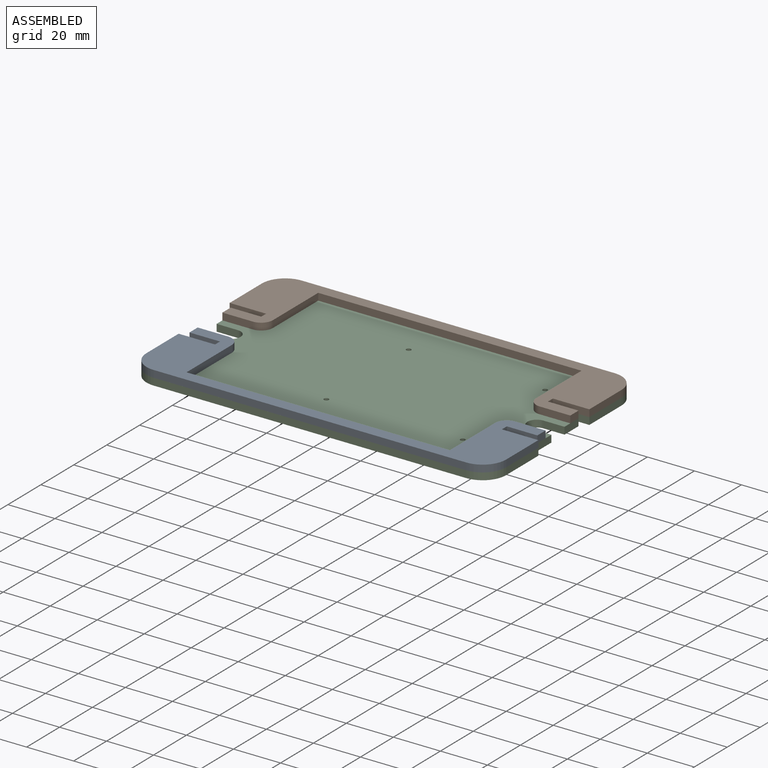
[diagram: assembled view]
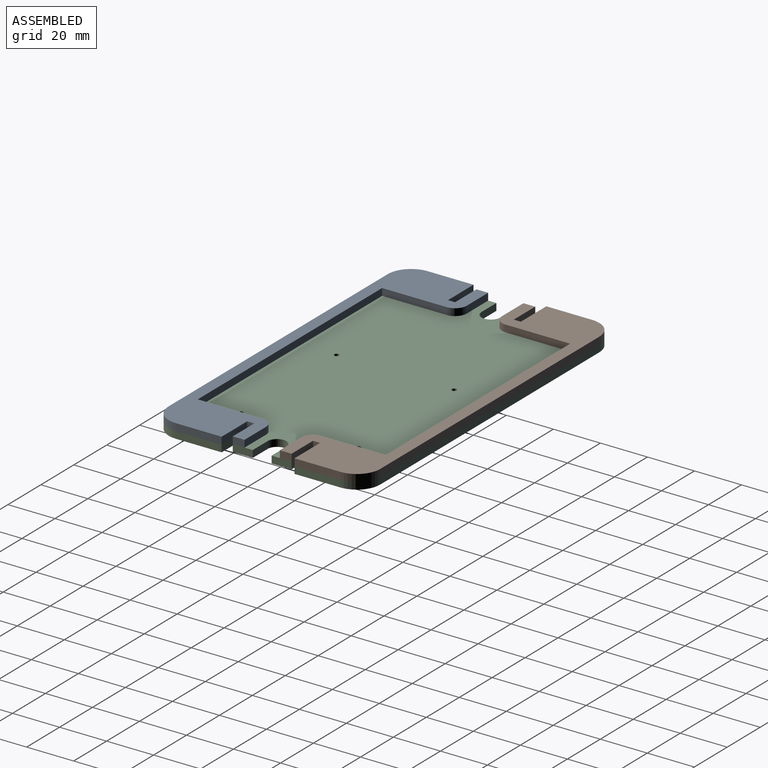
[diagram: assembled view, second angle]
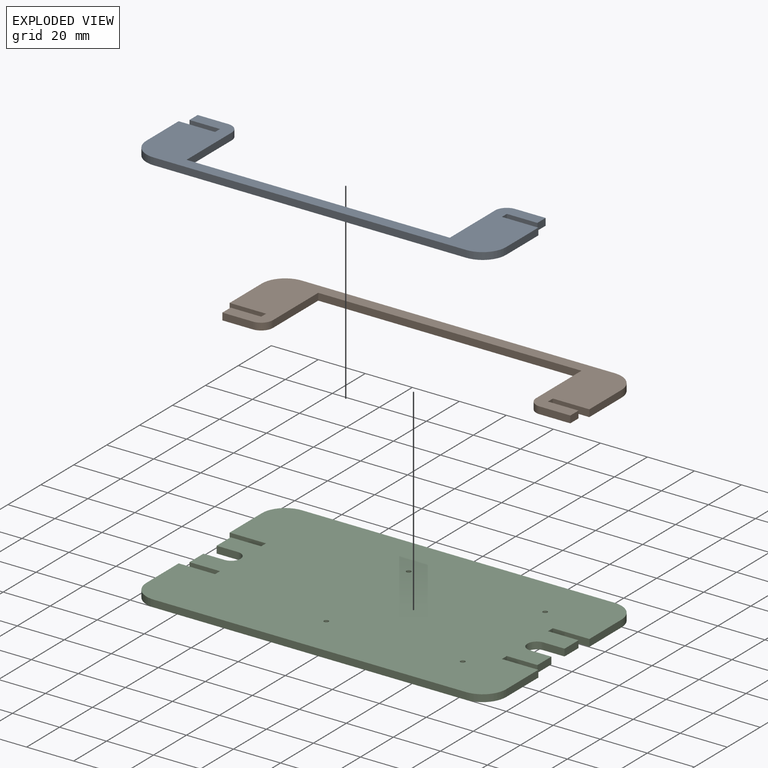
[diagram: exploded view]
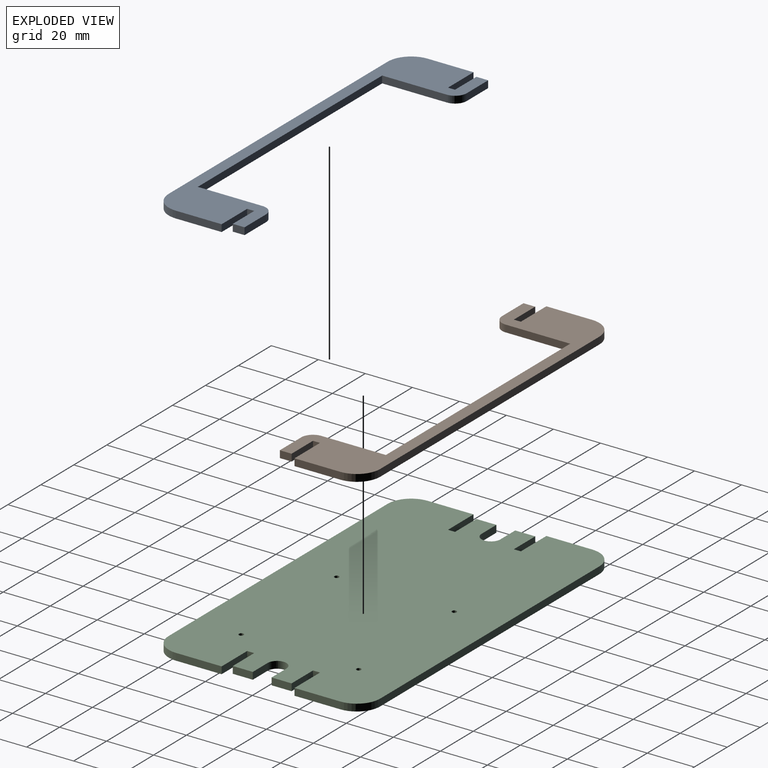
[diagram: exploded view, second angle]
ASSEMBLY  parts=3 mates=2
PART A: 22 faces, bbox 153x37.5x3 mm
  f0: plane 27.5x3mm, normal (1,0,0), area 82.5mm2, adj f1,f19,f20,f21
  f1: cylinder r=5mm len=5mm, axis (0,0,-1), area 23.6mm2, adj f0,f2,f20,f21
  f2: plane 13x3mm, normal (0,1,0), area 39mm2, adj f1,f3,f20,f21
  f3: plane 5x3mm, normal (-1,0,0), area 15mm2, adj f2,f4,f20,f21
  f4: plane 13x3mm, normal (0,-1,0), area 39mm2, adj f3,f5,f20,f21
  f5: plane 3x3mm, normal (-1,0,0), area 9mm2, adj f4,f6,f20,f21
  f6: plane 15.5x3mm, normal (0,1,0), area 46.5mm2, adj f5,f7,f20,f21
  f7: plane 19.5x3mm, normal (-1,0,0), area 58.5mm2, adj f6,f8,f20,f21
  f8: cylinder r=10mm len=10mm, axis (0,0,-1), area 47.1mm2, adj f7,f9,f20,f21
  f9: plane 133x3mm, normal (0,-1,0), area 399mm2, adj f8,f10,f20,f21
  f10: cylinder r=10mm len=10mm, axis (0,0,-1), area 47.1mm2, adj f9,f11,f20,f21
  f11: plane 19.5x3mm, normal (1,0,0), area 58.5mm2, adj f10,f12,f20,f21
  f12: plane 15.5x3mm, normal (0,1,0), area 46.5mm2, adj f11,f13,f20,f21
  f13: plane 3x3mm, normal (1,0,0), area 9mm2, adj f12,f14,f20,f21
  f14: plane 13x3mm, normal (0,-1,0), area 39mm2, adj f13,f15,f20,f21
  f15: plane 5x3mm, normal (1,0,0), area 15mm2, adj f14,f16,f20,f21
  f16: plane 13x3mm, normal (0,1,0), area 39mm2, adj f15,f17,f20,f21
  f17: cylinder r=5mm len=5mm, axis (0,0,-1), area 23.6mm2, adj f16,f18,f20,f21
  f18: plane 27.5x3mm, normal (-1,0,0), area 82.5mm2, adj f17,f19,f20,f21
  f19: plane 112x3mm, normal (0,1,0), area 336mm2, adj f0,f18,f20,f21
  f20: plane 153x37.5mm, normal (0,0,1), area 1925.8mm2, adj f0,f1,f2,f3,f4,f5,f6,f7
  f21: plane 153x37.5mm, normal (0,0,-1), area 1925.8mm2, adj f0,f1,f2,f3,f4,f5,f6,f7
PART B: same geometry as A
PART C: 38 faces, bbox 153x90x3 mm
  f0: cylinder r=4mm len=8mm, axis (0,0,-1), area 37.7mm2, adj f1,f34,f36,f37
  f1: plane 9x3mm, normal (0,1,0), area 27mm2, adj f0,f2,f36,f37
  f2: plane 8.5x3mm, normal (-1,0,0), area 25.5mm2, adj f1,f3,f36,f37
  f3: plane 13x3mm, normal (0,-1,0), area 39mm2, adj f2,f4,f36,f37
  f4: plane 3x3mm, normal (-1,0,0), area 9mm2, adj f3,f5,f36,f37
  f5: plane 15.5x3mm, normal (0,1,0), area 46.5mm2, adj f4,f6,f36,f37
  f6: plane 19.5x3mm, normal (-1,0,0), area 58.5mm2, adj f5,f7,f36,f37
  f7: cylinder r=10mm len=10mm, axis (0,0,-1), area 47.1mm2, adj f6,f8,f36,f37
  f8: plane 133x3mm, normal (0,-1,0), area 399mm2, adj f7,f9,f36,f37
  f9: cylinder r=10mm len=10mm, axis (0,0,-1), area 47.1mm2, adj f8,f10,f36,f37
  f10: plane 19.5x3mm, normal (1,0,0), area 58.5mm2, adj f9,f11,f36,f37
  f11: plane 15.5x3mm, normal (0,1,0), area 46.5mm2, adj f10,f12,f36,f37
  f12: plane 3x3mm, normal (1,0,0), area 9mm2, adj f11,f13,f36,f37
  f13: plane 13x3mm, normal (0,-1,0), area 39mm2, adj f12,f14,f36,f37
  f14: plane 8.5x3mm, normal (1,0,0), area 25.5mm2, adj f13,f15,f36,f37
  f15: plane 9x3mm, normal (0,1,0), area 27mm2, adj f14,f16,f36,f37
  f16: cylinder r=4mm len=8mm, axis (0,0,-1), area 37.7mm2, adj f15,f17,f36,f37
  f17: plane 9x3mm, normal (0,-1,0), area 27mm2, adj f16,f18,f36,f37
  f18: plane 8.5x3mm, normal (1,0,0), area 25.5mm2, adj f17,f19,f36,f37
  f19: plane 13x3mm, normal (0,1,0), area 39mm2, adj f18,f20,f36,f37
  f20: plane 3x3mm, normal (1,0,0), area 9mm2, adj f19,f21,f36,f37
  f21: plane 15.5x3mm, normal (0,-1,0), area 46.5mm2, adj f20,f22,f36,f37
  f22: plane 19.5x3mm, normal (1,0,0), area 58.5mm2, adj f21,f23,f36,f37
  f23: cylinder r=10mm len=10mm, axis (0,0,-1), area 47.1mm2, adj f22,f24,f36,f37
  f24: plane 133x3mm, normal (0,1,0), area 399mm2, adj f23,f25,f36,f37
  f25: cylinder r=10mm len=10mm, axis (0,0,-1), area 47.1mm2, adj f24,f26,f36,f37
  f26: plane 19.5x3mm, normal (-1,0,0), area 58.5mm2, adj f25,f27,f36,f37
  f27: plane 15.5x3mm, normal (0,-1,0), area 46.5mm2, adj f26,f28,f36,f37
  f28: plane 3x3mm, normal (-1,0,0), area 9mm2, adj f27,f29,f36,f37
  f29: plane 13x3mm, normal (0,1,0), area 39mm2, adj f28,f30,f36,f37
  f30: plane 8.5x3mm, normal (-1,0,0), area 25.5mm2, adj f29,f34,f36,f37
  f31: cylinder r=1mm len=3mm, axis (0,0,-1), area 18.8mm2, adj f36,f37
  f32: cylinder r=1mm len=3mm, axis (0,0,-1), area 18.8mm2, adj f36,f37
  f33: cylinder r=1mm len=3mm, axis (0,0,-1), area 18.8mm2, adj f36,f37
  f34: plane 9x3mm, normal (0,-1,0), area 27mm2, adj f0,f30,f36,f37
  f35: cylinder r=1mm len=3mm, axis (0,0,-1), area 18.8mm2, adj f36,f37
  f36: plane 153x90mm, normal (0,0,1), area 13166.3mm2, adj f0,f1,f2,f3,f4,f5,f6,f7
  f37: plane 153x90mm, normal (0,0,-1), area 13166.3mm2, adj f0,f1,f2,f3,f4,f5,f6,f7
PLACE A t=(0,0,8.6)mm
PLACE B rot(axis=(0,0,1),180deg) t=(0,0,8.6)mm
PLACE C t=(0,0,5.6)mm fixed
MATE fastened C.f36 <-> A.f21  axis (0,0,1) through (-76.5,-15.5,8.6)mm
MATE fastened C.f36 <-> B.f21  axis (0,0,1) through (-74,12.5,8.6)mm
